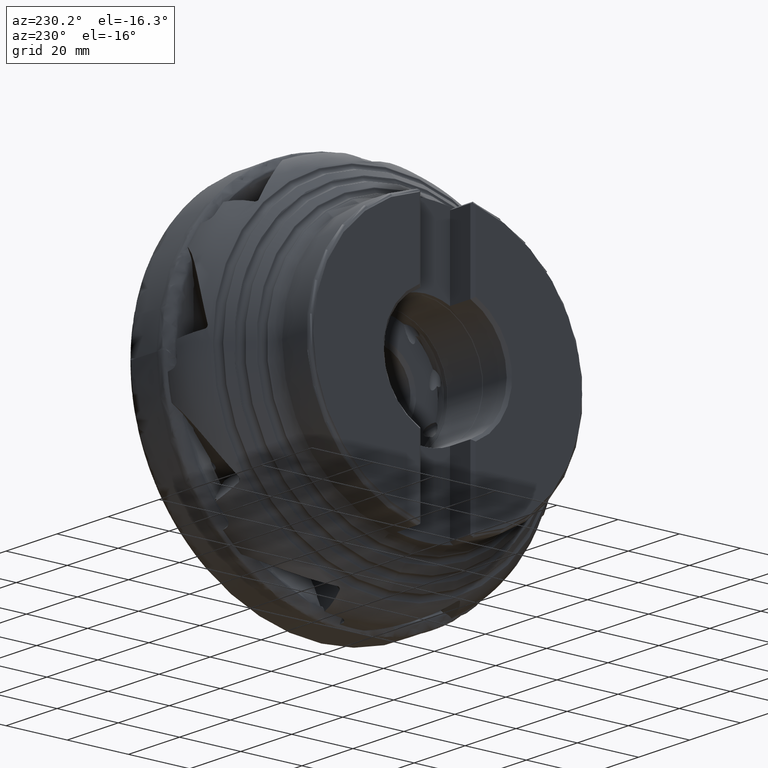
[diagram: clean part render]
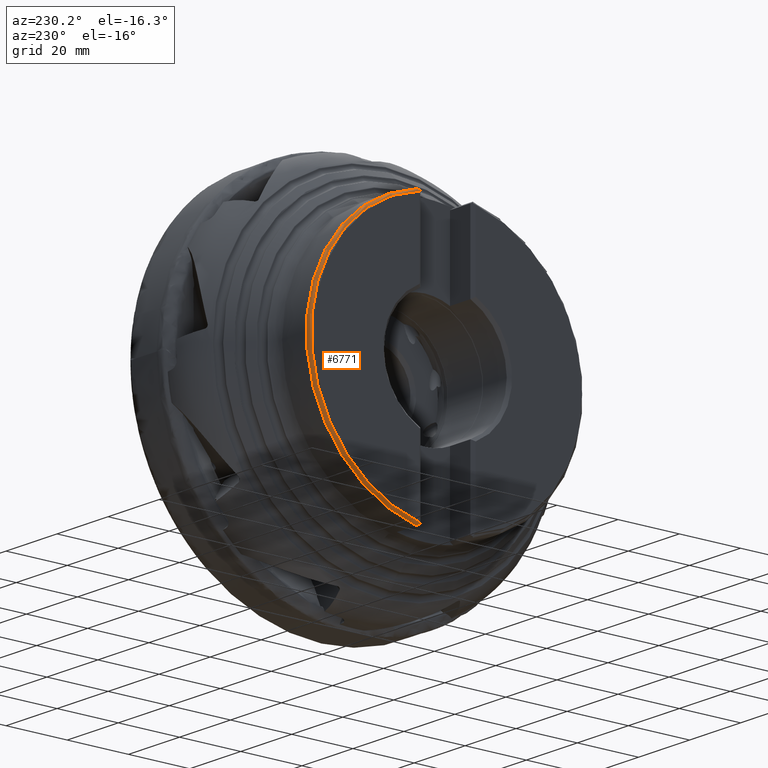
[diagram: same view with one face highlighted and labeled with its STEP entity id]
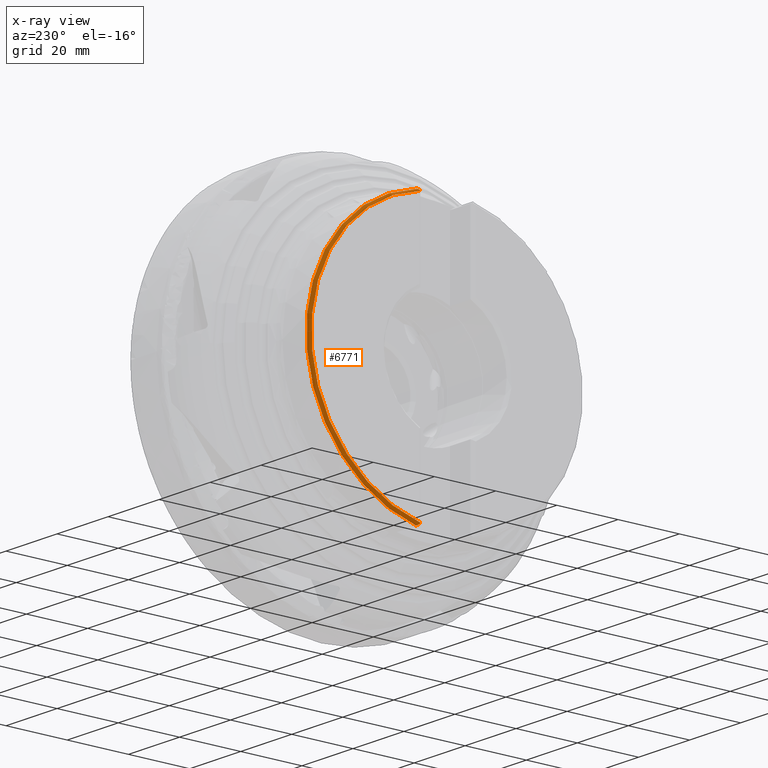
[diagram: x-ray of the same camera — body ghosted, the highlighted face saturated]
A machine part, auxiliary view. The second image highlights one B-rep face of the part: STEP entity #6771.
The next image is the same camera in x-ray: the body ghosted, the highlighted face saturated — about 0% of this face is hidden behind the body in this view.
In plain terms, the highlighted toroidal blend (fillet) surface has major radius 44 mm and minor (blend) radius 1 mm.
Its self-contained STEP definition (entity closure, byte-faithful):
#112 = CARTESIAN_POINT ( 'NONE',  ( -47.75000000000000000, 9.170586121755672300, 44.05565060447367600 ) ) ;
#344 = B_SPLINE_CURVE_WITH_KNOTS ( 'NONE', 3,
 ( #21154, #19062, #13284, #7069 ),
 .UNSPECIFIED., .F., .F.,
 ( 4, 4 ),
 ( 0.0007473612259821123500, 0.001082041949701276300 ),
 .UNSPECIFIED. ) ;
#1087 = DIRECTION ( 'NONE',  ( 1.000000000000000000, -0.0000000000000000000, -0.0000000000000000000 ) ) ;
#1133 = VERTEX_POINT ( 'NONE', #9585 ) ;
#1984 = B_SPLINE_CURVE_WITH_KNOTS ( 'NONE', 3,
 ( #12354, #14288, #18482, #20500 ),
 .UNSPECIFIED., .F., .F.,
 ( 4, 4 ),
 ( 0.001380074027580717500, 0.001715198917588445600 ),
 .UNSPECIFIED. ) ;
#2113 = B_SPLINE_CURVE_WITH_KNOTS ( 'NONE', 3,
 ( #12196, #15897, #19919, #6008, #12108, #2247, #25903, #14129 ),
 .UNSPECIFIED., .F., .F.,
 ( 4, 2, 2, 4 ),
 ( 0.0000000000000000000, 0.0002984446912743168500, 0.0005968893825486336900, 0.001193778765097277800 ),
 .UNSPECIFIED. ) ;
#2247 = CARTESIAN_POINT ( 'NONE',  ( -48.14696950763740800, 9.096429962436763700, 44.00468301095541100 ) ) ;
#2425 = EDGE_CURVE ( 'NONE', #1133, #16143, #9276, .T. ) ;
#2825 = ORIENTED_EDGE ( 'NONE', *, *, #19260, .F. ) ;
#3205 = CARTESIAN_POINT ( 'NONE',  ( -48.62628637090364200, 8.576286370903632800, -43.64718786304214100 ) ) ;
#4406 = AXIS2_PLACEMENT_3D ( 'NONE', #21698, #14077, #13736 ) ;
#4502 = VERTEX_POINT ( 'NONE', #23854 ) ;
#5551 = CIRCLE ( 'NONE', #7252, 44.20499999999999100 ) ;
#5607 = CARTESIAN_POINT ( 'NONE',  ( -48.72876197310685600, 8.678761973106837500, 43.34467805410663000 ) ) ;
#5806 = EDGE_CURVE ( 'NONE', #4502, #20316, #2113, .T. ) ;
#6008 = CARTESIAN_POINT ( 'NONE',  ( -48.43558608498954500, 8.864617045229737300, 43.84535778908569600 ) ) ;
#6036 = FACE_OUTER_BOUND ( 'NONE', #11676, .T. ) ;
#6372 = EDGE_CURVE ( 'NONE', #4502, #22336, #344, .T. ) ;
#6771 = ADVANCED_FACE ( 'NONE', ( #6036 ), #15738, .T. ) ;
#7069 = CARTESIAN_POINT ( 'NONE',  ( -48.72876197310685600, 8.678761973106837500, 43.34467805410663000 ) ) ;
#7252 = AXIS2_PLACEMENT_3D ( 'NONE', #15158, #13247, #8957 ) ;
#7385 = ORIENTED_EDGE ( 'NONE', *, *, #2425, .T. ) ;
#7931 = CARTESIAN_POINT ( 'NONE',  ( -47.75000000000000000, 9.170586121755675900, -44.05565060447367600 ) ) ;
#8797 = CARTESIAN_POINT ( 'NONE',  ( -48.44426874741297000, 8.874872597005838400, -43.85240643884088000 ) ) ;
#8957 = DIRECTION ( 'NONE',  ( 0.0000000000000000000, 0.0000000000000000000, -1.000000000000000000 ) ) ;
#9083 = ORIENTED_EDGE ( 'NONE', *, *, #23774, .T. ) ;
#9276 = B_SPLINE_CURVE_WITH_KNOTS ( 'NONE', 3,
 ( #7931, #15737, #10110, #8797, #18691, #16163 ),
 .UNSPECIFIED., .F., .F.,
 ( 4, 2, 4 ),
 ( 0.0000000000000000000, 0.0005991824275628336300, 0.001198364855125667300 ),
 .UNSPECIFIED. ) ;
#9585 = CARTESIAN_POINT ( 'NONE',  ( -47.75000000000000000, 9.170586121755675900, -44.05565060447367600 ) ) ;
#10110 = CARTESIAN_POINT ( 'NONE',  ( -48.14621132977282500, 9.096745948872468900, -44.00490018871056500 ) ) ;
#11005 = CIRCLE ( 'NONE', #21270, 44.99999999999999300 ) ;
#11274 = VERTEX_POINT ( 'NONE', #16028 ) ;
#11676 = EDGE_LOOP ( 'NONE', ( #2825, #7385, #18551, #9083, #18431, #20649 ) ) ;
#12108 = CARTESIAN_POINT ( 'NONE',  ( -48.37065711703064600, 8.929543678886913600, 43.88998192149952600 ) ) ;
#12196 = CARTESIAN_POINT ( 'NONE',  ( -48.62628637090364200, 8.576286370903629200, 43.64718786304215600 ) ) ;
#12354 = CARTESIAN_POINT ( 'NONE',  ( -48.72876197310685600, 8.678761973106837500, -43.34467805410663000 ) ) ;
#13047 = CARTESIAN_POINT ( 'NONE',  ( -47.75000000000000000, 0.0000000000000000000, 0.0000000000000000000 ) ) ;
#13247 = DIRECTION ( 'NONE',  ( 1.000000000000000000, -0.0000000000000000000, -0.0000000000000000000 ) ) ;
#13284 = CARTESIAN_POINT ( 'NONE',  ( -48.70746658375728100, 8.657466583757278400, 43.45263376241919700 ) ) ;
#13736 = DIRECTION ( 'NONE',  ( 0.0000000000000000000, 0.0000000000000000000, -1.000000000000000000 ) ) ;
#14077 = DIRECTION ( 'NONE',  ( 1.000000000000000000, -0.0000000000000000000, -0.0000000000000000000 ) ) ;
#14129 = CARTESIAN_POINT ( 'NONE',  ( -47.75000000000000000, 9.170586121755672300, 44.05565060447367600 ) ) ;
#14288 = CARTESIAN_POINT ( 'NONE',  ( -48.70725891534800000, 8.657258915347993500, -43.45368652505474200 ) ) ;
#15158 = CARTESIAN_POINT ( 'NONE',  ( -48.72876197310684900, 0.0000000000000000000, 0.0000000000000000000 ) ) ;
#15737 = CARTESIAN_POINT ( 'NONE',  ( -47.95317343704851300, 9.170586121755675900, -44.05565060447368400 ) ) ;
#15738 = TOROIDAL_SURFACE ( 'NONE', #4406, 43.99999999999999300, 1.000000000000002700 ) ;
#15897 = CARTESIAN_POINT ( 'NONE',  ( -48.58932967858030600, 8.653796190550014700, 43.70046043025293900 ) ) ;
#16028 = CARTESIAN_POINT ( 'NONE',  ( -48.72876197310685600, 8.678761973106837500, -43.34467805410663000 ) ) ;
#16143 = VERTEX_POINT ( 'NONE', #3205 ) ;
#16163 = CARTESIAN_POINT ( 'NONE',  ( -48.62628637090364200, 8.576286370903632800, -43.64718786304214100 ) ) ;
#18431 = ORIENTED_EDGE ( 'NONE', *, *, #6372, .F. ) ;
#18482 = CARTESIAN_POINT ( 'NONE',  ( -48.67161636675098900, 8.621616366750979300, -43.55425768554631100 ) ) ;
#18551 = ORIENTED_EDGE ( 'NONE', *, *, #24434, .F. ) ;
#18691 = CARTESIAN_POINT ( 'NONE',  ( -48.55244004992975000, 8.731165356559623400, -43.75363632609548100 ) ) ;
#19062 = CARTESIAN_POINT ( 'NONE',  ( -48.67120297649554300, 8.621202976495535400, 43.55510516918481300 ) ) ;
#19260 = EDGE_CURVE ( 'NONE', #1133, #20316, #11005, .T. ) ;
#19919 = CARTESIAN_POINT ( 'NONE',  ( -48.54433064521210600, 8.727233846006855700, 43.75093419543492200 ) ) ;
#20316 = VERTEX_POINT ( 'NONE', #112 ) ;
#20500 = CARTESIAN_POINT ( 'NONE',  ( -48.62628637090364200, 8.576286370903632800, -43.64718786304214100 ) ) ;
#20649 = ORIENTED_EDGE ( 'NONE', *, *, #5806, .T. ) ;
#21154 = CARTESIAN_POINT ( 'NONE',  ( -48.62628637090364200, 8.576286370903629200, 43.64718786304215600 ) ) ;
#21270 = AXIS2_PLACEMENT_3D ( 'NONE', #13047, #1087, #25097 ) ;
#21698 = CARTESIAN_POINT ( 'NONE',  ( -47.75000000000000000, 0.0000000000000000000, 0.0000000000000000000 ) ) ;
#22336 = VERTEX_POINT ( 'NONE', #5607 ) ;
#23774 = EDGE_CURVE ( 'NONE', #11274, #22336, #5551, .T. ) ;
#23854 = CARTESIAN_POINT ( 'NONE',  ( -48.62628637090364200, 8.576286370903629200, 43.64718786304215600 ) ) ;
#24434 = EDGE_CURVE ( 'NONE', #11274, #16143, #1984, .T. ) ;
#25097 = DIRECTION ( 'NONE',  ( 0.0000000000000000000, 0.0000000000000000000, -1.000000000000000000 ) ) ;
#25903 = CARTESIAN_POINT ( 'NONE',  ( -47.95392834671769600, 9.170586121755675900, 44.05565060447367600 ) ) ;